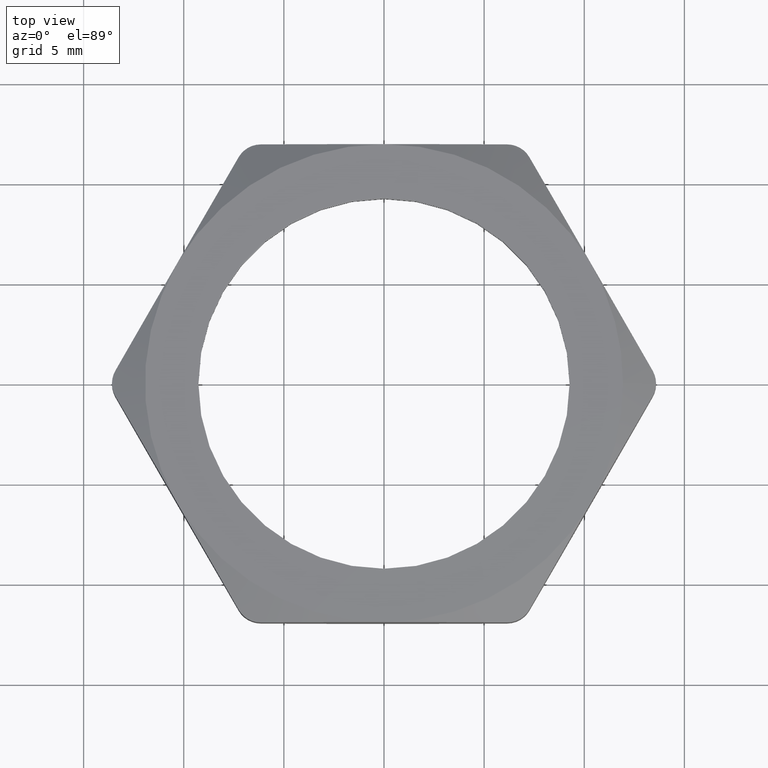
[diagram: clean part render]
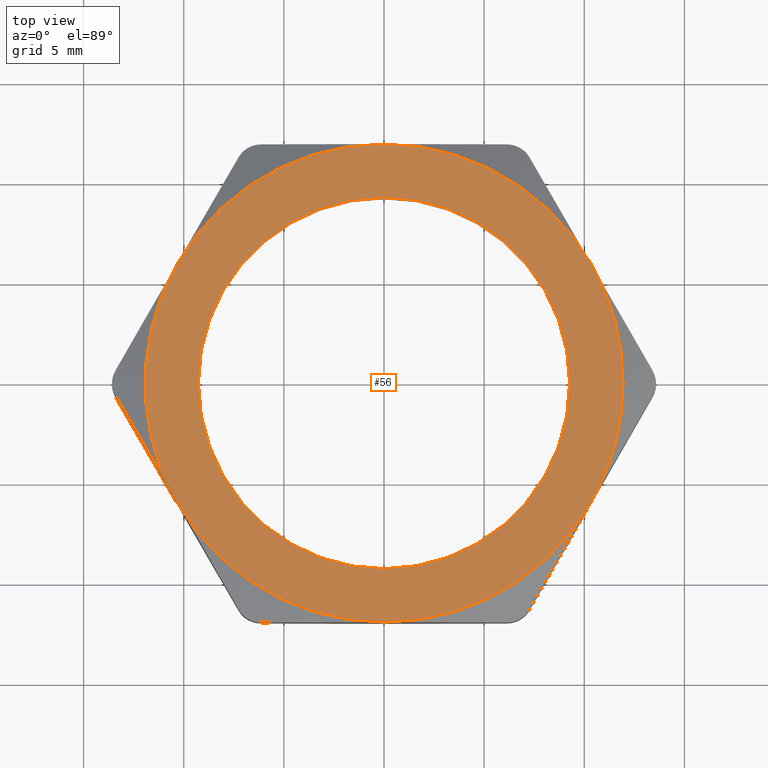
[diagram: same view with one face highlighted and labeled with its STEP entity id]
A machine part, top view. The second image highlights one B-rep face of the part: STEP entity #56.
In plain terms, the highlighted planar face has unit normal (0, 0, -1).
Its self-contained STEP definition (entity closure, byte-faithful):
#56 = ADVANCED_FACE ( 'NONE', ( #370, #406 ), #404, .F. ) ;
#81 = EDGE_CURVE ( 'NONE', #198, #2208, #503, .T. ) ;
#82 = ORIENTED_EDGE ( 'NONE', *, *, #83, .T. ) ;
#83 = EDGE_CURVE ( 'NONE', #2208, #2288, #488, .T. ) ;
#84 = ORIENTED_EDGE ( 'NONE', *, *, #85, .T. ) ;
#85 = EDGE_CURVE ( 'NONE', #2288, #2198, #483, .T. ) ;
#158 = ORIENTED_EDGE ( 'NONE', *, *, #159, .T. ) ;
#159 = EDGE_CURVE ( 'NONE', #2198, #2285, #690, .T. ) ;
#160 = ORIENTED_EDGE ( 'NONE', *, *, #161, .T. ) ;
#161 = EDGE_CURVE ( 'NONE', #2285, #1876, #685, .T. ) ;
#162 = ORIENTED_EDGE ( 'NONE', *, *, #1889, .T. ) ;
#163 = ORIENTED_EDGE ( 'NONE', *, *, #164, .T. ) ;
#164 = EDGE_CURVE ( 'NONE', #1892, #198, #681, .T. ) ;
#169 = EDGE_LOOP ( 'NONE', ( #170, #171 ) ) ;
#170 = ORIENTED_EDGE ( 'NONE', *, *, #2070, .F. ) ;
#171 = ORIENTED_EDGE ( 'NONE', *, *, #172, .F. ) ;
#172 = EDGE_CURVE ( 'NONE', #1901, #2071, #698, .T. ) ;
#173 = EDGE_LOOP ( 'NONE', ( #174, #82, #84, #158, #160, #162, #163 ) ) ;
#174 = ORIENTED_EDGE ( 'NONE', *, *, #81, .T. ) ;
#198 = VERTEX_POINT ( 'NONE', #532 ) ;
#355 = DIRECTION ( 'NONE',  ( -1.000000000000000000, 0.0000000000000000000, 0.0000000000000000000 ) ) ;
#356 = DIRECTION ( 'NONE',  ( 0.0000000000000000000, 0.0000000000000000000, -1.000000000000000000 ) ) ;
#357 = AXIS2_PLACEMENT_3D ( 'NONE', #405, #356, #355 ) ;
#370 = FACE_BOUND ( 'NONE', #169, .T. ) ;
#404 = PLANE ( 'NONE',  #357 ) ;
#405 = CARTESIAN_POINT ( 'NONE',  ( 6.829619984160658000E-017, 0.9400000000000005000, 0.2000000000000000100 ) ) ;
#406 = FACE_OUTER_BOUND ( 'NONE', #173, .T. ) ;
#479 = DIRECTION ( 'NONE',  ( 1.000000000000000000, 0.0000000000000000000, 0.0000000000000000000 ) ) ;
#480 = DIRECTION ( 'NONE',  ( 0.0000000000000000000, 0.0000000000000000000, 1.000000000000000000 ) ) ;
#481 = CARTESIAN_POINT ( 'NONE',  ( 0.0000000000000000000, 0.0000000000000000000, 0.2000000000000000100 ) ) ;
#482 = AXIS2_PLACEMENT_3D ( 'NONE', #481, #480, #479 ) ;
#483 = CIRCLE ( 'NONE', #482, 0.4700000000000000800 ) ;
#484 = DIRECTION ( 'NONE',  ( 1.000000000000000000, 0.0000000000000000000, 0.0000000000000000000 ) ) ;
#485 = DIRECTION ( 'NONE',  ( 0.0000000000000000000, 0.0000000000000000000, 1.000000000000000000 ) ) ;
#486 = CARTESIAN_POINT ( 'NONE',  ( 0.0000000000000000000, 0.0000000000000000000, 0.2000000000000000100 ) ) ;
#487 = AXIS2_PLACEMENT_3D ( 'NONE', #486, #485, #484 ) ;
#488 = CIRCLE ( 'NONE', #487, 0.4700000000000000800 ) ;
#489 = DIRECTION ( 'NONE',  ( 1.000000000000000000, 0.0000000000000000000, 0.0000000000000000000 ) ) ;
#490 = DIRECTION ( 'NONE',  ( 0.0000000000000000000, 0.0000000000000000000, 1.000000000000000000 ) ) ;
#501 = CARTESIAN_POINT ( 'NONE',  ( 0.0000000000000000000, 0.0000000000000000000, 0.2000000000000000100 ) ) ;
#502 = AXIS2_PLACEMENT_3D ( 'NONE', #501, #490, #489 ) ;
#503 = CIRCLE ( 'NONE', #502, 0.4700000000000000800 ) ;
#517 = CARTESIAN_POINT ( 'NONE',  ( 0.0000000000000000000, 0.0000000000000000000, 0.2000000000000000100 ) ) ;
#532 = CARTESIAN_POINT ( 'NONE',  ( -5.914624404477002600E-017, 0.4700000000000000300, 0.2000000000000000100 ) ) ;
#677 = DIRECTION ( 'NONE',  ( 1.000000000000000000, 0.0000000000000000000, 0.0000000000000000000 ) ) ;
#678 = DIRECTION ( 'NONE',  ( 0.0000000000000000000, 0.0000000000000000000, 1.000000000000000000 ) ) ;
#679 = CARTESIAN_POINT ( 'NONE',  ( 0.0000000000000000000, 0.0000000000000000000, 0.2000000000000000100 ) ) ;
#680 = AXIS2_PLACEMENT_3D ( 'NONE', #679, #678, #677 ) ;
#681 = CIRCLE ( 'NONE', #680, 0.4700000000000000800 ) ;
#682 = DIRECTION ( 'NONE',  ( 1.000000000000000000, 0.0000000000000000000, 0.0000000000000000000 ) ) ;
#683 = DIRECTION ( 'NONE',  ( 0.0000000000000000000, 0.0000000000000000000, 1.000000000000000000 ) ) ;
#684 = AXIS2_PLACEMENT_3D ( 'NONE', #691, #683, #682 ) ;
#685 = CIRCLE ( 'NONE', #684, 0.4700000000000000800 ) ;
#686 = DIRECTION ( 'NONE',  ( 1.000000000000000000, 0.0000000000000000000, 0.0000000000000000000 ) ) ;
#687 = DIRECTION ( 'NONE',  ( 0.0000000000000000000, 0.0000000000000000000, 1.000000000000000000 ) ) ;
#688 = CARTESIAN_POINT ( 'NONE',  ( 0.0000000000000000000, 0.0000000000000000000, 0.2000000000000000100 ) ) ;
#689 = AXIS2_PLACEMENT_3D ( 'NONE', #688, #687, #686 ) ;
#690 = CIRCLE ( 'NONE', #689, 0.4700000000000000800 ) ;
#691 = CARTESIAN_POINT ( 'NONE',  ( 0.0000000000000000000, 0.0000000000000000000, 0.2000000000000000100 ) ) ;
#695 = DIRECTION ( 'NONE',  ( 1.000000000000000000, 0.0000000000000000000, 0.0000000000000000000 ) ) ;
#696 = DIRECTION ( 'NONE',  ( 0.0000000000000000000, 0.0000000000000000000, 1.000000000000000000 ) ) ;
#697 = AXIS2_PLACEMENT_3D ( 'NONE', #517, #696, #695 ) ;
#698 = CIRCLE ( 'NONE', #697, 0.3649999999999999900 ) ;
#897 = CARTESIAN_POINT ( 'NONE',  ( 0.4700000000000002000, 0.0000000000000000000, 0.2000000000000000100 ) ) ;
#902 = CARTESIAN_POINT ( 'NONE',  ( 0.4070319397786864600, 0.2350000000000000400, 0.2000000000000000100 ) ) ;
#903 = DIRECTION ( 'NONE',  ( 1.000000000000000000, 0.0000000000000000000, 0.0000000000000000000 ) ) ;
#925 = CARTESIAN_POINT ( 'NONE',  ( 0.0000000000000000000, 0.0000000000000000000, 0.2000000000000000100 ) ) ;
#926 = AXIS2_PLACEMENT_3D ( 'NONE', #925, #929, #903 ) ;
#927 = CIRCLE ( 'NONE', #926, 0.4700000000000000800 ) ;
#929 = DIRECTION ( 'NONE',  ( 0.0000000000000000000, 0.0000000000000000000, 1.000000000000000000 ) ) ;
#975 = CARTESIAN_POINT ( 'NONE',  ( 0.3649999999999999900, 4.592425496802574200E-017, 0.2000000000000000100 ) ) ;
#1400 = CARTESIAN_POINT ( 'NONE',  ( -0.3649999999999999900, 0.0000000000000000000, 0.2000000000000000100 ) ) ;
#1401 = DIRECTION ( 'NONE',  ( 1.000000000000000000, 0.0000000000000000000, 0.0000000000000000000 ) ) ;
#1402 = DIRECTION ( 'NONE',  ( 0.0000000000000000000, 0.0000000000000000000, 1.000000000000000000 ) ) ;
#1403 = CARTESIAN_POINT ( 'NONE',  ( 0.0000000000000000000, 0.0000000000000000000, 0.2000000000000000100 ) ) ;
#1404 = AXIS2_PLACEMENT_3D ( 'NONE', #1403, #1402, #1401 ) ;
#1405 = CIRCLE ( 'NONE', #1404, 0.3649999999999999900 ) ;
#1532 = CARTESIAN_POINT ( 'NONE',  ( 5.914624404477001400E-017, -0.4699999999999999200, 0.2000000000000000100 ) ) ;
#1597 = CARTESIAN_POINT ( 'NONE',  ( -0.4070319397786864000, 0.2350000000000001800, 0.2000000000000000100 ) ) ;
#1726 = CARTESIAN_POINT ( 'NONE',  ( -0.4070319397786864600, -0.2350000000000000100, 0.2000000000000000100 ) ) ;
#1727 = CARTESIAN_POINT ( 'NONE',  ( 0.4070319397786861800, -0.2350000000000001000, 0.2000000000000000100 ) ) ;
#1876 = VERTEX_POINT ( 'NONE', #897 ) ;
#1889 = EDGE_CURVE ( 'NONE', #1876, #1892, #927, .T. ) ;
#1892 = VERTEX_POINT ( 'NONE', #902 ) ;
#1901 = VERTEX_POINT ( 'NONE', #975 ) ;
#2070 = EDGE_CURVE ( 'NONE', #2071, #1901, #1405, .T. ) ;
#2071 = VERTEX_POINT ( 'NONE', #1400 ) ;
#2198 = VERTEX_POINT ( 'NONE', #1532 ) ;
#2208 = VERTEX_POINT ( 'NONE', #1597 ) ;
#2285 = VERTEX_POINT ( 'NONE', #1727 ) ;
#2288 = VERTEX_POINT ( 'NONE', #1726 ) ;